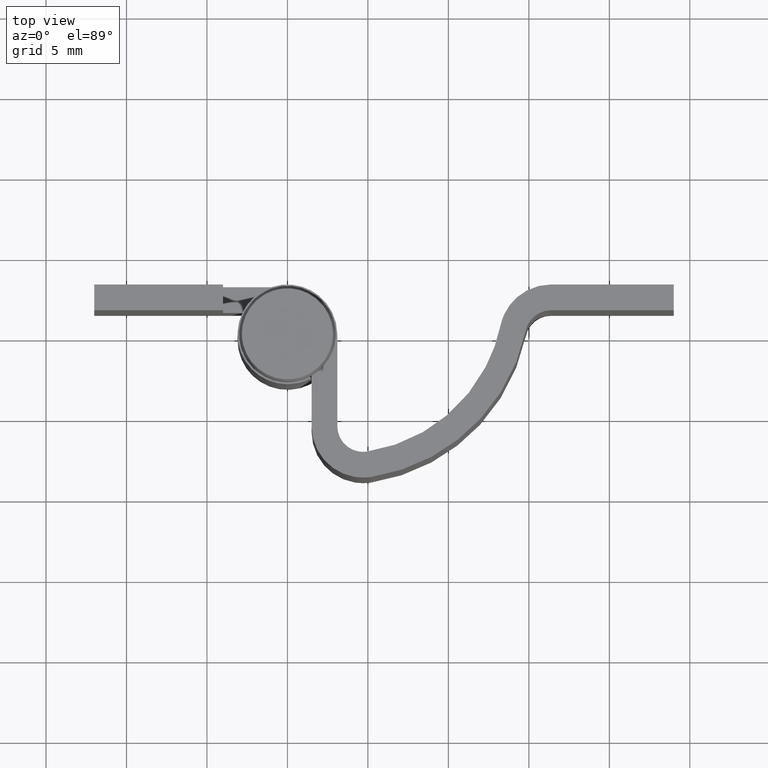
[diagram: clean part render]
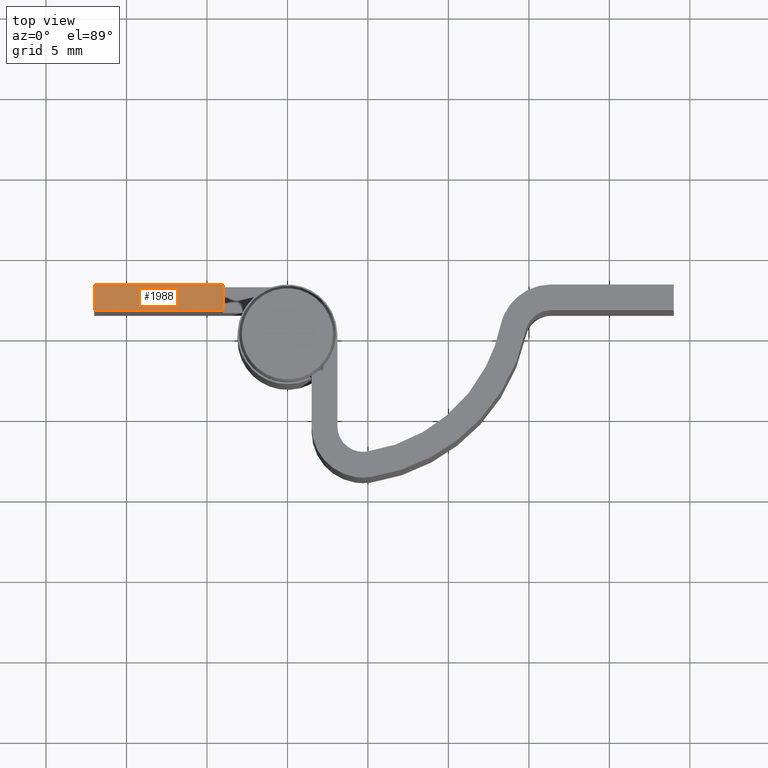
[diagram: same view with one face highlighted and labeled with its STEP entity id]
A machine part, top view. The second image highlights one B-rep face of the part: STEP entity #1988.
In plain terms, the highlighted face is a freeform B-spline surface patch.
Its self-contained STEP definition (entity closure, byte-faithful):
#1782=CARTESIAN_POINT('',(-4.0,1.499999999999946,23.0));
#1783=VERTEX_POINT('',#1782);
#1798=CARTESIAN_POINT('',(-4.0,3.099998000000000,23.0));
#1799=VERTEX_POINT('',#1798);
#1805=CARTESIAN_POINT('',(-4.0,1.499999999999946,23.0));
#1806=CARTESIAN_POINT('',(-4.0,3.099998000000000,23.0));
#1807=QUASI_UNIFORM_CURVE('',1,(#1805,#1806),.UNSPECIFIED.,.F.,.U.);
#1808=EDGE_CURVE('',#1783,#1799,#1807,.T.);
#1961=CARTESIAN_POINT('',(-12.399599984494451,1.420080103001050,23.0));
#1962=CARTESIAN_POINT('',(-3.600399800928832,1.420080103001050,23.0));
#1963=CARTESIAN_POINT('',(-12.399599984494451,3.179917939914187,23.0));
#1964=CARTESIAN_POINT('',(-3.600399800928832,3.179917939914187,23.0));
#1965=B_SPLINE_SURFACE_WITH_KNOTS('',1,1,((#1961,#1963),(#1962,#1964)),.UNSPECIFIED.,.F.,.F.,.U.,(2,2),(2,2),(0.0,8.799200183565615),(0.041708334948495,0.958291687403247),.UNSPECIFIED.);
#1966=CARTESIAN_POINT('',(-12.0,1.500000000000000,23.0));
#1967=VERTEX_POINT('',#1966);
#1968=CARTESIAN_POINT('',(-4.0,1.499999999999946,23.0));
#1969=CARTESIAN_POINT('',(-12.0,1.500000000000000,23.0));
#1970=QUASI_UNIFORM_CURVE('',1,(#1968,#1969),.UNSPECIFIED.,.F.,.U.);
#1971=EDGE_CURVE('',#1783,#1967,#1970,.T.);
#1972=ORIENTED_EDGE('',*,*,#1971,.F.);
#1973=ORIENTED_EDGE('',*,*,#1808,.T.);
#1974=CARTESIAN_POINT('',(-12.0,3.099998000000000,23.0));
#1975=VERTEX_POINT('',#1974);
#1976=CARTESIAN_POINT('',(-12.0,3.099998000000000,23.0));
#1977=CARTESIAN_POINT('',(-4.0,3.099998000000000,23.0));
#1978=QUASI_UNIFORM_CURVE('',1,(#1976,#1977),.UNSPECIFIED.,.F.,.U.);
#1979=EDGE_CURVE('',#1975,#1799,#1978,.T.);
#1980=ORIENTED_EDGE('',*,*,#1979,.F.);
#1981=CARTESIAN_POINT('',(-12.0,1.500000000000000,23.0));
#1982=CARTESIAN_POINT('',(-12.0,3.099998000000000,23.0));
#1983=QUASI_UNIFORM_CURVE('',1,(#1981,#1982),.UNSPECIFIED.,.F.,.U.);
#1984=EDGE_CURVE('',#1967,#1975,#1983,.T.);
#1985=ORIENTED_EDGE('',*,*,#1984,.F.);
#1986=EDGE_LOOP('',(#1972,#1973,#1980,#1985));
#1987=FACE_OUTER_BOUND('',#1986,.T.);
#1988=ADVANCED_FACE('',(#1987),#1965,.T.);